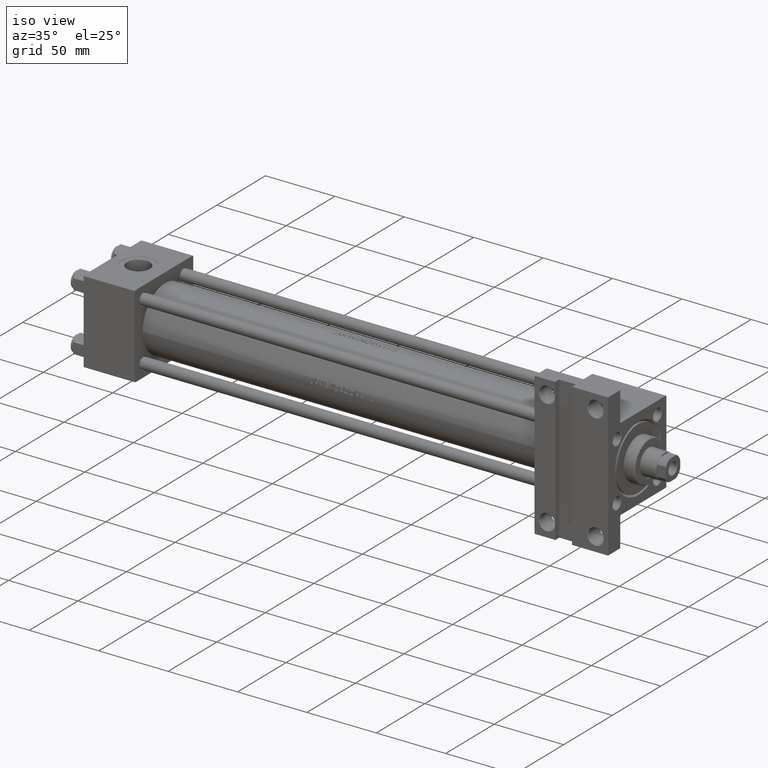
[diagram: clean part render]
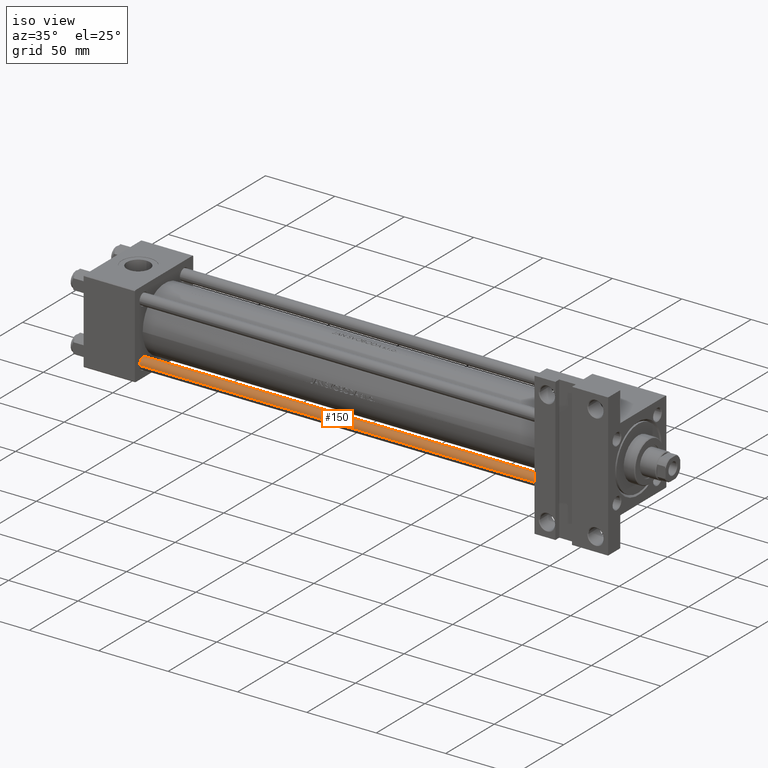
[diagram: same view with one face highlighted and labeled with its STEP entity id]
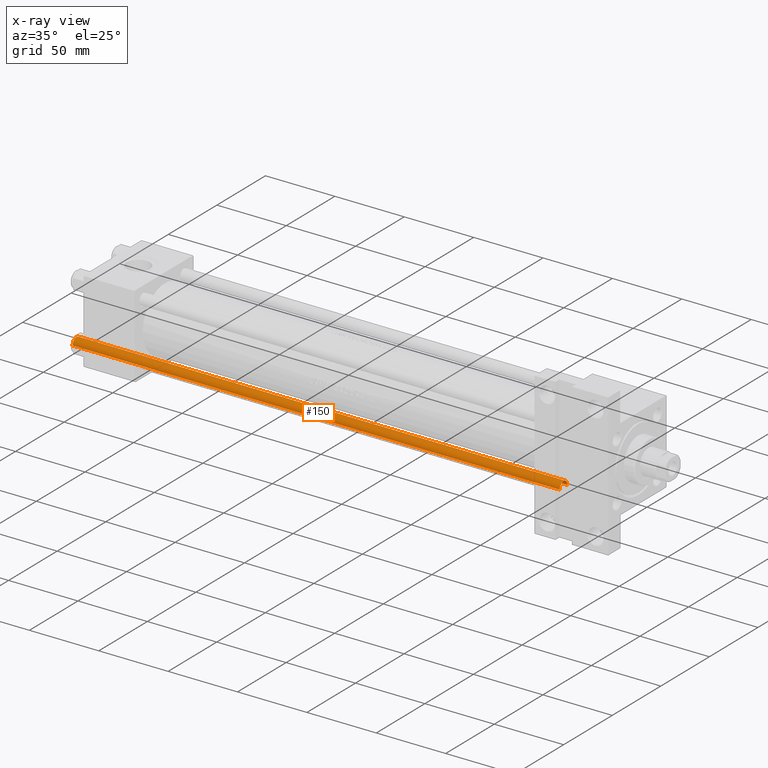
[diagram: x-ray of the same camera — body ghosted, the highlighted face saturated]
A machine part, iso view. The second image highlights one B-rep face of the part: STEP entity #150.
The next image is the same camera in x-ray: the body ghosted, the highlighted face saturated — about 0% of this face is hidden behind the body in this view.
In plain terms, the highlighted cylindrical surface (edge-blend (fillet) strip) has radius 4 mm, axis along (1, 0, 0).
Its self-contained STEP definition (entity closure, byte-faithful):
#150 = ADVANCED_FACE ( 'NONE', ( #4489 ), #8435, .T. ) ;
#465 = VERTEX_POINT ( 'NONE', #15069 ) ;
#658 = AXIS2_PLACEMENT_3D ( 'NONE', #43110, #27859, #27370 ) ;
#751 = VECTOR ( 'NONE', #25468, 1000.000000000000000 ) ;
#1312 = EDGE_CURVE ( 'NONE', #23359, #12713, #16422, .T. ) ;
#2266 = DIRECTION ( 'NONE',  ( 1.000000000000000000, 0.000000000000000000, 0.000000000000000000 ) ) ;
#2549 = CARTESIAN_POINT ( 'NONE',  ( -4.000000000000000000, 0.000000000000000000, 0.5000000000000004441 ) ) ;
#2962 = AXIS2_PLACEMENT_3D ( 'NONE', #40208, #21486, #2266 ) ;
#4012 = CARTESIAN_POINT ( 'NONE',  ( -4.000000000000000000, 0.000000000000000000, 351.5000000000000000 ) ) ;
#4489 = FACE_OUTER_BOUND ( 'NONE', #17412, .T. ) ;
#7141 = CARTESIAN_POINT ( 'NONE',  ( 4.000000000000000000, 4.898587196589412829E-16, 352.0000000000000000 ) ) ;
#8435 = CYLINDRICAL_SURFACE ( 'NONE', #45373, 4.000000000000000000 ) ;
#8648 = ORIENTED_EDGE ( 'NONE', *, *, #1312, .T. ) ;
#12713 = VERTEX_POINT ( 'NONE', #17008 ) ;
#15069 = CARTESIAN_POINT ( 'NONE',  ( 4.000000000000000000, 4.898587196589412829E-16, 0.5000000000000004441 ) ) ;
#16422 = CIRCLE ( 'NONE', #658, 4.000000000000000000 ) ;
#17008 = CARTESIAN_POINT ( 'NONE',  ( 4.000000000000000000, 4.898587196589412829E-16, 351.5000000000000000 ) ) ;
#17412 = EDGE_LOOP ( 'NONE', ( #8648, #17602, #41423, #44899 ) ) ;
#17602 = ORIENTED_EDGE ( 'NONE', *, *, #42831, .T. ) ;
#17729 = EDGE_CURVE ( 'NONE', #23359, #43436, #47889, .T. ) ;
#21486 = DIRECTION ( 'NONE',  ( -0.000000000000000000, -0.000000000000000000, 1.000000000000000000 ) ) ;
#21530 = CARTESIAN_POINT ( 'NONE',  ( -4.000000000000000000, 0.000000000000000000, 352.0000000000000000 ) ) ;
#21753 = VECTOR ( 'NONE', #30066, 1000.000000000000000 ) ;
#23359 = VERTEX_POINT ( 'NONE', #4012 ) ;
#24207 = CIRCLE ( 'NONE', #2962, 4.000000000000000000 ) ;
#25468 = DIRECTION ( 'NONE',  ( -0.000000000000000000, -0.000000000000000000, -1.000000000000000000 ) ) ;
#27370 = DIRECTION ( 'NONE',  ( 1.000000000000000000, 0.000000000000000000, 0.000000000000000000 ) ) ;
#27859 = DIRECTION ( 'NONE',  ( 0.000000000000000000, 0.000000000000000000, -1.000000000000000000 ) ) ;
#29908 = DIRECTION ( 'NONE',  ( -1.000000000000000000, 0.000000000000000000, 0.000000000000000000 ) ) ;
#30066 = DIRECTION ( 'NONE',  ( -0.000000000000000000, -0.000000000000000000, -1.000000000000000000 ) ) ;
#30625 = CARTESIAN_POINT ( 'NONE',  ( 0.000000000000000000, 0.000000000000000000, 352.0000000000000000 ) ) ;
#37522 = DIRECTION ( 'NONE',  ( -0.000000000000000000, -0.000000000000000000, -1.000000000000000000 ) ) ;
#40208 = CARTESIAN_POINT ( 'NONE',  ( 0.000000000000000000, 0.000000000000000000, 0.5000000000000004441 ) ) ;
#40901 = LINE ( 'NONE', #7141, #21753 ) ;
#41423 = ORIENTED_EDGE ( 'NONE', *, *, #45448, .T. ) ;
#42831 = EDGE_CURVE ( 'NONE', #12713, #465, #40901, .T. ) ;
#43110 = CARTESIAN_POINT ( 'NONE',  ( 0.000000000000000000, 0.000000000000000000, 351.5000000000000000 ) ) ;
#43436 = VERTEX_POINT ( 'NONE', #2549 ) ;
#44899 = ORIENTED_EDGE ( 'NONE', *, *, #17729, .F. ) ;
#45373 = AXIS2_PLACEMENT_3D ( 'NONE', #30625, #37522, #29908 ) ;
#45448 = EDGE_CURVE ( 'NONE', #465, #43436, #24207, .T. ) ;
#47889 = LINE ( 'NONE', #21530, #751 ) ;